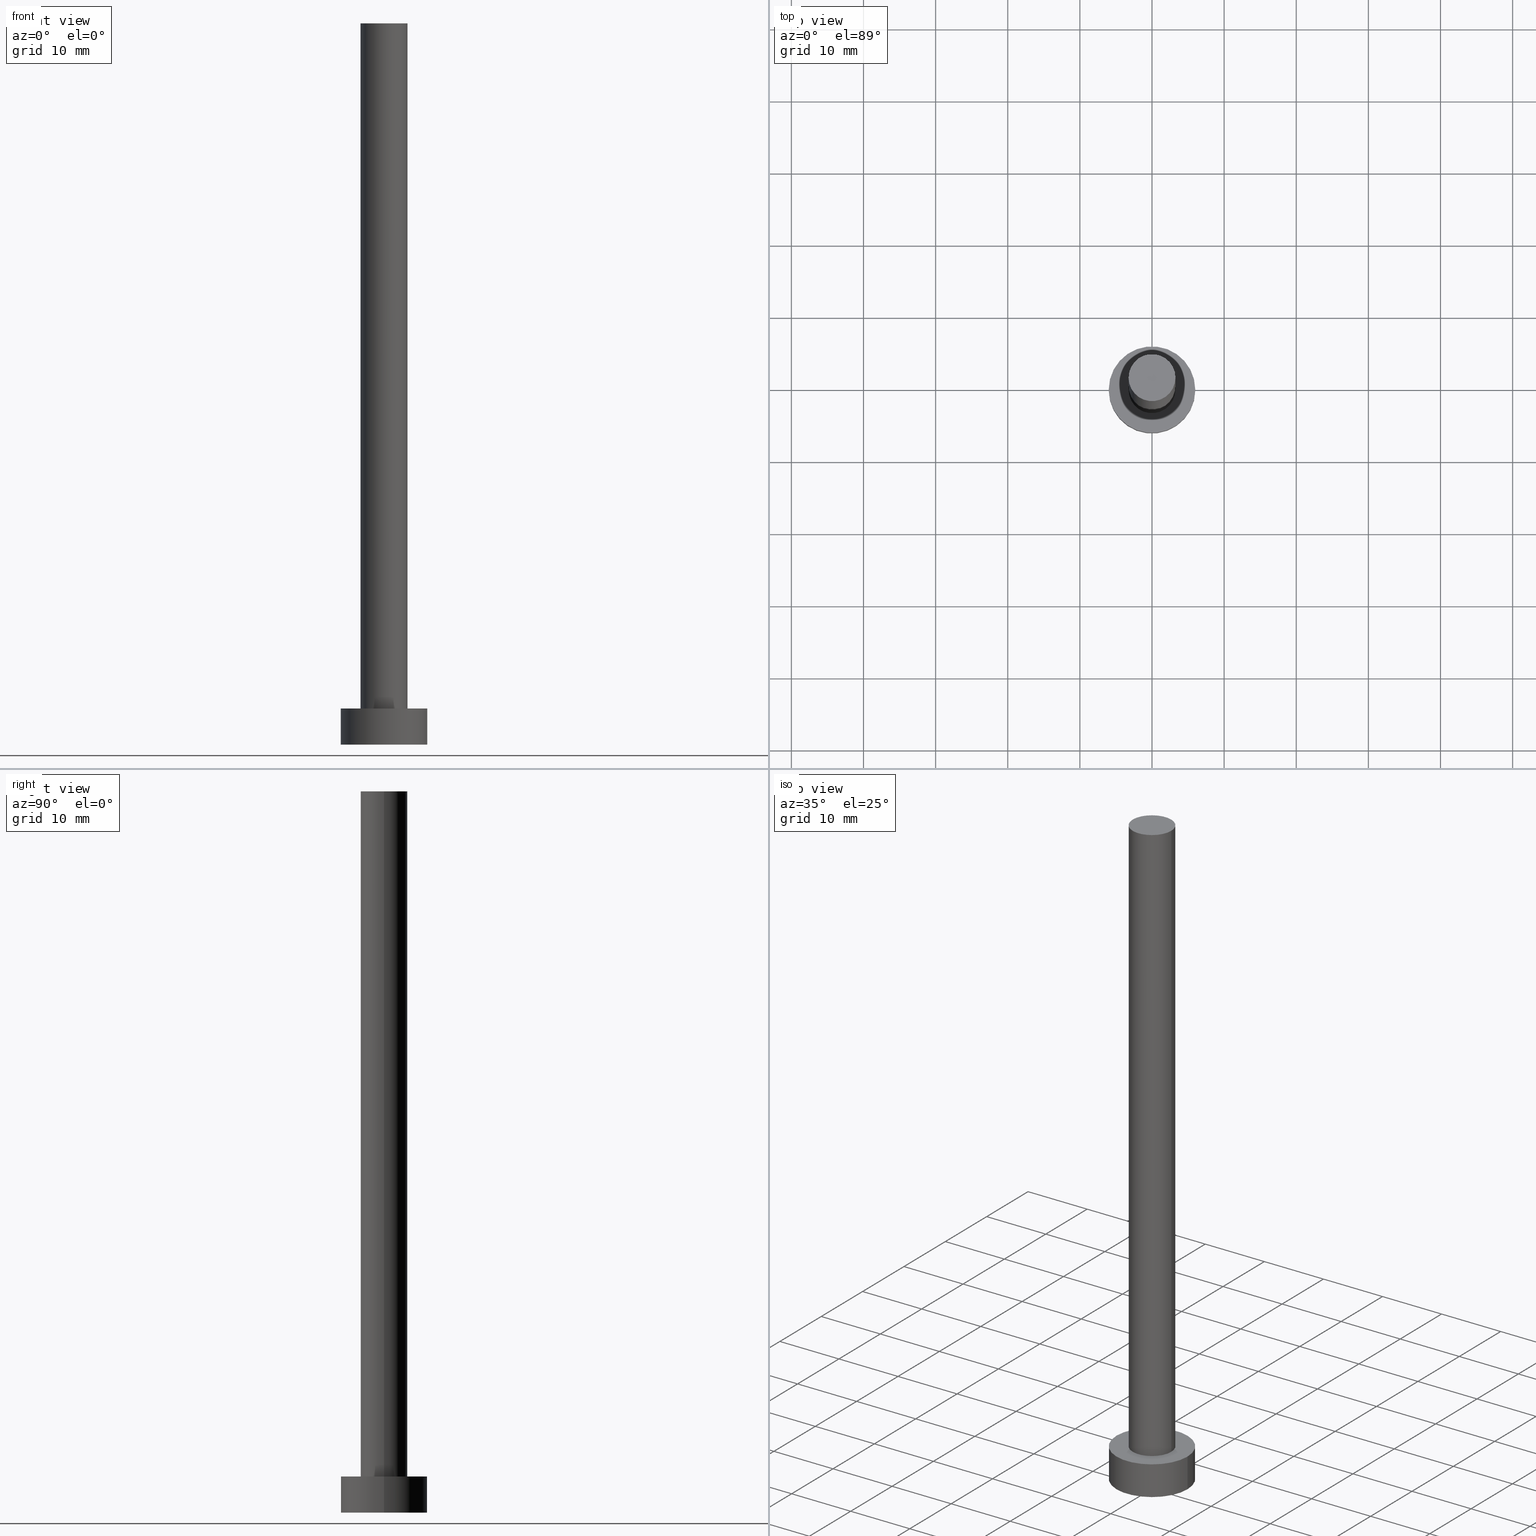
[diagram: canonical four-view strip — front | top / right | iso, engineering-drawing reading convention]
A machine part, canonical four-view strip (front | top / right | iso — engineering-drawing reading convention). The complete STEP part file that produces these views, byte-faithful:
ISO-10303-21;
HEADER;
FILE_DESCRIPTION (( 'STEP AP203' ),
    '1' );
FILE_NAME ('1d6a.STEP',
    '2023-02-13T15:17:59',
    ( '' ),
    ( '' ),
    'SwSTEP 2.0',
    'SolidWorks 2019',
    '' );
FILE_SCHEMA (( 'CONFIG_CONTROL_DESIGN' ));
ENDSEC;

DATA;
#1 = DIRECTION ( 'NONE',  ( -1.000000000000000000, 0.000000000000000000, 0.000000000000000000 ) ) ;
#2 = CC_DESIGN_DATE_AND_TIME_ASSIGNMENT ( #111, #13, ( #134 ) ) ;
#3 = PERSON_AND_ORGANIZATION_ROLE ( 'creator' ) ;
#4 = LINE ( 'NONE', #217, #91 ) ;
#5 = PERSON_AND_ORGANIZATION_ROLE ( 'classification_officer' ) ;
#6 = DIRECTION ( 'NONE',  ( 1.000000000000000000, 0.000000000000000000, 0.000000000000000000 ) ) ;
#7 = DIRECTION ( 'NONE',  ( 0.000000000000000000, 0.000000000000000000, 1.000000000000000000 ) ) ;
#8 = AXIS2_PLACEMENT_3D ( 'NONE', #193, #215, #239 ) ;
#9 = CC_DESIGN_SECURITY_CLASSIFICATION ( #134, ( #128 ) ) ;
#10 = APPROVAL_STATUS ( 'not_yet_approved' ) ;
#11 = CC_DESIGN_PERSON_AND_ORGANIZATION_ASSIGNMENT ( #139, #5, ( #134 ) ) ;
#12 = CARTESIAN_POINT ( 'NONE',  ( 0.000000000000000000, 0.000000000000000000, 5.000000000000000000 ) ) ;
#13 = DATE_TIME_ROLE ( 'classification_date' ) ;
#14 = DATE_AND_TIME ( #243, #93 ) ;
#15 = LOCAL_TIME ( 16, 17, 59.00000000000000000, #172 ) ;
#16 = ORIENTED_EDGE ( 'NONE', *, *, #199, .T. ) ;
#17 = CARTESIAN_POINT ( 'NONE',  ( -6.000000000000000888, 0.000000000000000000, 5.000000000000000000 ) ) ;
#18 = FACE_OUTER_BOUND ( 'NONE', #209, .T. ) ;
#19 = APPROVAL_PERSON_ORGANIZATION ( #216, #110, #123 ) ;
#20 = CARTESIAN_POINT ( 'NONE',  ( 0.000000000000000000, 0.000000000000000000, 0.000000000000000000 ) ) ;
#21 = ORIENTED_EDGE ( 'NONE', *, *, #33, .T. ) ;
#22 = DIRECTION ( 'NONE',  ( -0.000000000000000000, -0.000000000000000000, -1.000000000000000000 ) ) ;
#23 = DIRECTION ( 'NONE',  ( 0.000000000000000000, 0.000000000000000000, 1.000000000000000000 ) ) ;
#24 = LOCAL_TIME ( 16, 17, 59.00000000000000000, #83 ) ;
#25 = DIRECTION ( 'NONE',  ( -0.000000000000000000, -0.000000000000000000, -1.000000000000000000 ) ) ;
#26 = APPLICATION_CONTEXT ( 'configuration controlled 3d designs of mechanical parts and assemblies' ) ;
#27 = APPROVAL_STATUS ( 'not_yet_approved' ) ;
#28 = AXIS2_PLACEMENT_3D ( 'NONE', #116, #162, #226 ) ;
#29 = ADVANCED_FACE ( 'NONE', ( #250 ), #224, .T. ) ;
#30 = CIRCLE ( 'NONE', #196, 6.000000000000000888 ) ;
#31 = VERTEX_POINT ( 'NONE', #118 ) ;
#32 = CARTESIAN_POINT ( 'NONE',  ( 0.000000000000000000, 0.000000000000000000, 0.000000000000000000 ) ) ;
#33 = EDGE_CURVE ( 'NONE', #189, #51, #47, .T. ) ;
#34 = AXIS2_PLACEMENT_3D ( 'NONE', #124, #153, #64 ) ;
#35 = CARTESIAN_POINT ( 'NONE',  ( 0.000000000000000000, 0.000000000000000000, 5.000000000000000000 ) ) ;
#36 = VERTEX_POINT ( 'NONE', #232 ) ;
#37 = CYLINDRICAL_SURFACE ( 'NONE', #214, 6.000000000000000888 ) ;
#38 = MECHANICAL_CONTEXT ( 'NONE', #185, 'mechanical' ) ;
#39 = EDGE_CURVE ( 'NONE', #36, #189, #77, .T. ) ;
#40 = DIRECTION ( 'NONE',  ( -0.000000000000000000, -0.000000000000000000, -1.000000000000000000 ) ) ;
#41 = VECTOR ( 'NONE', #25, 1000.000000000000000 ) ;
#42 = DATE_AND_TIME ( #167, #155 ) ;
#43 = DATE_AND_TIME ( #60, #15 ) ;
#44 = DIRECTION ( 'NONE',  ( 0.000000000000000000, 0.000000000000000000, 1.000000000000000000 ) ) ;
#45 = PERSON_AND_ORGANIZATION ( #225, #140 ) ;
#46 = PRODUCT_DEFINITION_SHAPE ( 'NONE', 'NONE',  #197 ) ;
#47 = CIRCLE ( 'NONE', #188, 6.000000000000000888 ) ;
#48 = CC_DESIGN_PERSON_AND_ORGANIZATION_ASSIGNMENT ( #168, #3, ( #128 ) ) ;
#49 = CIRCLE ( 'NONE', #8, 3.250000000000000444 ) ;
#50 = CC_DESIGN_PERSON_AND_ORGANIZATION_ASSIGNMENT ( #233, #142, ( #197 ) ) ;
#51 = VERTEX_POINT ( 'NONE', #229 ) ;
#52 = AXIS2_PLACEMENT_3D ( 'NONE', #253, #22, #181 ) ;
#53 = ADVANCED_FACE ( 'NONE', ( #54 ), #148, .T. ) ;
#54 = FACE_OUTER_BOUND ( 'NONE', #56, .T. ) ;
#55 = LINE ( 'NONE', #101, #244 ) ;
#56 = EDGE_LOOP ( 'NONE', ( #150, #136, #129, #223 ) ) ;
#57 = CIRCLE ( 'NONE', #231, 3.250000000000000444 ) ;
#58 = EDGE_LOOP ( 'NONE', ( #228, #183 ) ) ;
#59 = FACE_BOUND ( 'NONE', #252, .T. ) ;
#60 = CALENDAR_DATE ( 2023, 13, 2 ) ;
#61 = ADVANCED_FACE ( 'NONE', ( #59, #62 ), #137, .T. ) ;
#62 = FACE_OUTER_BOUND ( 'NONE', #58, .T. ) ;
#63 = DIRECTION ( 'NONE',  ( -0.000000000000000000, -0.000000000000000000, -1.000000000000000000 ) ) ;
#64 = DIRECTION ( 'NONE',  ( -1.000000000000000000, 0.000000000000000000, 0.000000000000000000 ) ) ;
#65 = EDGE_CURVE ( 'NONE', #246, #98, #55, .T. ) ;
#66 = CLOSED_SHELL ( 'NONE', ( #254, #71, #92, #61, #88, #53, #29 ) ) ;
#67 = MANIFOLD_SOLID_BREP ( 'P�idat vysunut�m3', #66 ) ;
#68 =( LENGTH_UNIT ( ) NAMED_UNIT ( * ) SI_UNIT ( .MILLI., .METRE. ) );
#69 = CIRCLE ( 'NONE', #166, 3.250000000000000444 ) ;
#70 = CARTESIAN_POINT ( 'NONE',  ( 0.000000000000000000, 0.000000000000000000, 5.000000000000000000 ) ) ;
#71 = ADVANCED_FACE ( 'NONE', ( #210 ), #94, .T. ) ;
#72 = PERSON_AND_ORGANIZATION ( #225, #140 ) ;
#73 = PRODUCT_RELATED_PRODUCT_CATEGORY ( 'detail', '', ( #173 ) ) ;
#74 = DIRECTION ( 'NONE',  ( 1.000000000000000000, 0.000000000000000000, -0.000000000000000000 ) ) ;
#75 = ORIENTED_EDGE ( 'NONE', *, *, #199, .F. ) ;
#76 = CARTESIAN_POINT ( 'NONE',  ( 0.000000000000000000, 0.000000000000000000, 100.0000000000000000 ) ) ;
#77 = LINE ( 'NONE', #17, #141 ) ;
#78 = ORIENTED_EDGE ( 'NONE', *, *, #152, .F. ) ;
#79 = PLANE ( 'NONE',  #130 ) ;
#80 = ORIENTED_EDGE ( 'NONE', *, *, #152, .T. ) ;
#81 = PERSON_AND_ORGANIZATION ( #225, #140 ) ;
#82 = FACE_OUTER_BOUND ( 'NONE', #180, .T. ) ;
#83 = COORDINATED_UNIVERSAL_TIME_OFFSET ( 1, 0, .AHEAD. ) ;
#84 = APPLICATION_PROTOCOL_DEFINITION ( 'international standard', 'config_control_design', 1994, #185 ) ;
#85 = AXIS2_PLACEMENT_3D ( 'NONE', #171, #159, #103 ) ;
#86 = CALENDAR_DATE ( 2023, 13, 2 ) ;
#87 = DIRECTION ( 'NONE',  ( 0.000000000000000000, 0.000000000000000000, 1.000000000000000000 ) ) ;
#88 = ADVANCED_FACE ( 'NONE', ( #18 ), #79, .F. ) ;
#89 = DIRECTION ( 'NONE',  ( 1.000000000000000000, 0.000000000000000000, -0.000000000000000000 ) ) ;
#90 = CC_DESIGN_PERSON_AND_ORGANIZATION_ASSIGNMENT ( #81, #122, ( #128 ) ) ;
#91 = VECTOR ( 'NONE', #63, 1000.000000000000000 ) ;
#92 = ADVANCED_FACE ( 'NONE', ( #184 ), #37, .T. ) ;
#93 = LOCAL_TIME ( 16, 17, 59.00000000000000000, #112 ) ;
#94 = CYLINDRICAL_SURFACE ( 'NONE', #52, 6.000000000000000888 ) ;
#95 = VERTEX_POINT ( 'NONE', #147 ) ;
#96 = DIRECTION ( 'NONE',  ( 0.000000000000000000, 0.000000000000000000, 1.000000000000000000 ) ) ;
#97 = ADVANCED_BREP_SHAPE_REPRESENTATION ( '1d6a', ( #67, #198 ), #242 ) ;
#98 = VERTEX_POINT ( 'NONE', #146 ) ;
#99 = DIRECTION ( 'NONE',  ( 1.000000000000000000, 0.000000000000000000, -0.000000000000000000 ) ) ;
#100 = ORIENTED_EDGE ( 'NONE', *, *, #160, .F. ) ;
#101 = CARTESIAN_POINT ( 'NONE',  ( 3.250000000000000444, 3.980102097228898231E-16, 100.0000000000000000 ) ) ;
#102 = APPLICATION_PROTOCOL_DEFINITION ( 'international standard', 'config_control_design', 1994, #26 ) ;
#103 = DIRECTION ( 'NONE',  ( 1.000000000000000000, 0.000000000000000000, 0.000000000000000000 ) ) ;
#104 = AXIS2_PLACEMENT_3D ( 'NONE', #35, #207, #99 ) ;
#105 = DATE_TIME_ROLE ( 'creation_date' ) ;
#106 = CARTESIAN_POINT ( 'NONE',  ( -6.000000000000000888, 0.000000000000000000, 0.000000000000000000 ) ) ;
#107 = CC_DESIGN_APPROVAL ( #119, ( #197 ) ) ;
#108 = PERSON_AND_ORGANIZATION_ROLE ( 'design_owner' ) ;
#109 = CIRCLE ( 'NONE', #85, 6.000000000000000888 ) ;
#110 = APPROVAL ( #10, 'NEUR�EN�' ) ;
#111 = DATE_AND_TIME ( #154, #24 ) ;
#112 = COORDINATED_UNIVERSAL_TIME_OFFSET ( 1, 0, .AHEAD. ) ;
#113 = EDGE_LOOP ( 'NONE', ( #132, #16, #202, #186 ) ) ;
#114 = ORIENTED_EDGE ( 'NONE', *, *, #33, .F. ) ;
#115 = ORIENTED_EDGE ( 'NONE', *, *, #235, .F. ) ;
#116 = CARTESIAN_POINT ( 'NONE',  ( 0.000000000000000000, 0.000000000000000000, 5.000000000000000000 ) ) ;
#117 = ORIENTED_EDGE ( 'NONE', *, *, #39, .T. ) ;
#118 = CARTESIAN_POINT ( 'NONE',  ( -3.250000000000000444, 0.000000000000000000, 5.000000000000000000 ) ) ;
#119 = APPROVAL ( #151, 'NEUR�EN�' ) ;
#120 = CARTESIAN_POINT ( 'NONE',  ( 0.000000000000000000, 0.000000000000000000, 0.000000000000000000 ) ) ;
#121 = APPROVAL ( #27, 'NEUR�EN�' ) ;
#122 = PERSON_AND_ORGANIZATION_ROLE ( 'design_supplier' ) ;
#123 = APPROVAL_ROLE ( '' ) ;
#124 = CARTESIAN_POINT ( 'NONE',  ( 0.000000000000000000, 0.000000000000000000, 100.0000000000000000 ) ) ;
#125 = DIRECTION ( 'NONE',  ( 1.000000000000000000, 0.000000000000000000, 0.000000000000000000 ) ) ;
#126 = DIRECTION ( 'NONE',  ( 1.000000000000000000, 0.000000000000000000, 0.000000000000000000 ) ) ;
#127 = DIRECTION ( 'NONE',  ( 1.000000000000000000, 0.000000000000000000, 0.000000000000000000 ) ) ;
#128 = PRODUCT_DEFINITION_FORMATION_WITH_SPECIFIED_SOURCE ( 'LIBOVOLN�', '', #173, .NOT_KNOWN. ) ;
#129 = ORIENTED_EDGE ( 'NONE', *, *, #182, .T. ) ;
#130 = AXIS2_PLACEMENT_3D ( 'NONE', #20, #96, #74 ) ;
#131 = ORIENTED_EDGE ( 'NONE', *, *, #191, .F. ) ;
#132 = ORIENTED_EDGE ( 'NONE', *, *, #133, .F. ) ;
#133 = EDGE_CURVE ( 'NONE', #204, #36, #177, .T. ) ;
#134 = SECURITY_CLASSIFICATION ( '', '', #194 ) ;
#135 = ORIENTED_EDGE ( 'NONE', *, *, #182, .F. ) ;
#136 = ORIENTED_EDGE ( 'NONE', *, *, #222, .F. ) ;
#137 = PLANE ( 'NONE',  #104 ) ;
#138 = COORDINATED_UNIVERSAL_TIME_OFFSET ( 1, 0, .AHEAD. ) ;
#139 = PERSON_AND_ORGANIZATION ( #225, #140 ) ;
#140 = ORGANIZATION ( 'NEUR�EN�', 'NEUR�EN�', '' ) ;
#141 = VECTOR ( 'NONE', #234, 1000.000000000000000 ) ;
#142 = PERSON_AND_ORGANIZATION_ROLE ( 'creator' ) ;
#143 =( NAMED_UNIT ( * ) SI_UNIT ( $, .STERADIAN. ) SOLID_ANGLE_UNIT ( ) );
#144 = CARTESIAN_POINT ( 'NONE',  ( 0.000000000000000000, 0.000000000000000000, 100.0000000000000000 ) ) ;
#145 = APPROVAL_DATE_TIME ( #14, #121 ) ;
#146 = CARTESIAN_POINT ( 'NONE',  ( 3.250000000000000444, 3.980102097228898231E-16, 5.000000000000000000 ) ) ;
#147 = CARTESIAN_POINT ( 'NONE',  ( -3.250000000000000444, 0.000000000000000000, 100.0000000000000000 ) ) ;
#148 = CYLINDRICAL_SURFACE ( 'NONE', #203, 3.250000000000000444 ) ;
#149 = APPROVAL_PERSON_ORGANIZATION ( #72, #121, #161 ) ;
#150 = ORIENTED_EDGE ( 'NONE', *, *, #65, .F. ) ;
#151 = APPROVAL_STATUS ( 'not_yet_approved' ) ;
#152 = EDGE_CURVE ( 'NONE', #246, #95, #208, .T. ) ;
#153 = DIRECTION ( 'NONE',  ( -0.000000000000000000, -0.000000000000000000, -1.000000000000000000 ) ) ;
#154 = CALENDAR_DATE ( 2023, 13, 2 ) ;
#155 = LOCAL_TIME ( 16, 17, 59.00000000000000000, #138 ) ;
#156 = DATE_AND_TIME ( #86, #236 ) ;
#157 = CARTESIAN_POINT ( 'NONE',  ( 6.000000000000000888, 7.347880794884120722E-16, 5.000000000000000000 ) ) ;
#158 = APPROVAL_ROLE ( '' ) ;
#159 = DIRECTION ( 'NONE',  ( 0.000000000000000000, 0.000000000000000000, 1.000000000000000000 ) ) ;
#160 = EDGE_CURVE ( 'NONE', #36, #204, #109, .T. ) ;
#161 = APPROVAL_ROLE ( '' ) ;
#162 = DIRECTION ( 'NONE',  ( 0.000000000000000000, 0.000000000000000000, 1.000000000000000000 ) ) ;
#163 = ORIENTED_EDGE ( 'NONE', *, *, #65, .T. ) ;
#164 = DIRECTION ( 'NONE',  ( -0.000000000000000000, -0.000000000000000000, -1.000000000000000000 ) ) ;
#165 = DIRECTION ( 'NONE',  ( -0.000000000000000000, -0.000000000000000000, -1.000000000000000000 ) ) ;
#166 = AXIS2_PLACEMENT_3D ( 'NONE', #12, #87, #126 ) ;
#167 = CALENDAR_DATE ( 2023, 13, 2 ) ;
#168 = PERSON_AND_ORGANIZATION ( #225, #140 ) ;
#169 =( NAMED_UNIT ( * ) PLANE_ANGLE_UNIT ( ) SI_UNIT ( $, .RADIAN. ) );
#170 = CARTESIAN_POINT ( 'NONE',  ( 0.000000000000000000, 0.000000000000000000, 0.000000000000000000 ) ) ;
#171 = CARTESIAN_POINT ( 'NONE',  ( 0.000000000000000000, 0.000000000000000000, 5.000000000000000000 ) ) ;
#172 = COORDINATED_UNIVERSAL_TIME_OFFSET ( 1, 0, .AHEAD. ) ;
#173 = PRODUCT ( '1d6a', '1d6a', '', ( #38 ) ) ;
#174 = LINE ( 'NONE', #157, #41 ) ;
#175 = DIRECTION ( 'NONE',  ( 0.000000000000000000, 0.000000000000000000, 1.000000000000000000 ) ) ;
#176 = DIRECTION ( 'NONE',  ( 0.000000000000000000, 0.000000000000000000, 1.000000000000000000 ) ) ;
#177 = CIRCLE ( 'NONE', #28, 6.000000000000000888 ) ;
#178 = ORIENTED_EDGE ( 'NONE', *, *, #222, .T. ) ;
#179 = CC_DESIGN_APPROVAL ( #121, ( #134 ) ) ;
#180 = EDGE_LOOP ( 'NONE', ( #78, #163, #205, #135 ) ) ;
#181 = DIRECTION ( 'NONE',  ( -1.000000000000000000, 0.000000000000000000, 0.000000000000000000 ) ) ;
#182 = EDGE_CURVE ( 'NONE', #95, #31, #4, .T. ) ;
#183 = ORIENTED_EDGE ( 'NONE', *, *, #133, .T. ) ;
#184 = FACE_OUTER_BOUND ( 'NONE', #190, .T. ) ;
#185 = APPLICATION_CONTEXT ( 'configuration controlled 3d designs of mechanical parts and assemblies' ) ;
#186 = ORIENTED_EDGE ( 'NONE', *, *, #39, .F. ) ;
#187 = DIRECTION ( 'NONE',  ( 1.000000000000000000, 0.000000000000000000, 0.000000000000000000 ) ) ;
#188 = AXIS2_PLACEMENT_3D ( 'NONE', #32, #255, #187 ) ;
#189 = VERTEX_POINT ( 'NONE', #106 ) ;
#190 = EDGE_LOOP ( 'NONE', ( #75, #100, #117, #21 ) ) ;
#191 = EDGE_CURVE ( 'NONE', #31, #98, #57, .T. ) ;
#192 = CARTESIAN_POINT ( 'NONE',  ( 0.000000000000000000, 0.000000000000000000, 5.000000000000000000 ) ) ;
#193 = CARTESIAN_POINT ( 'NONE',  ( 0.000000000000000000, 0.000000000000000000, 100.0000000000000000 ) ) ;
#194 = SECURITY_CLASSIFICATION_LEVEL ( 'unclassified' ) ;
#195 = DIRECTION ( 'NONE',  ( 1.000000000000000000, 0.000000000000000000, 0.000000000000000000 ) ) ;
#196 = AXIS2_PLACEMENT_3D ( 'NONE', #120, #23, #127 ) ;
#197 = PRODUCT_DEFINITION ( 'NEZN�M�', '', #128, #221 ) ;
#198 = AXIS2_PLACEMENT_3D ( 'NONE', #170, #7, #125 ) ;
#199 = EDGE_CURVE ( 'NONE', #204, #51, #174, .T. ) ;
#200 = SHAPE_DEFINITION_REPRESENTATION ( #46, #97 ) ;
#201 = EDGE_LOOP ( 'NONE', ( #178, #80 ) ) ;
#202 = ORIENTED_EDGE ( 'NONE', *, *, #235, .T. ) ;
#203 = AXIS2_PLACEMENT_3D ( 'NONE', #227, #165, #1 ) ;
#204 = VERTEX_POINT ( 'NONE', #219 ) ;
#205 = ORIENTED_EDGE ( 'NONE', *, *, #251, .T. ) ;
#206 = APPROVAL_PERSON_ORGANIZATION ( #213, #119, #158 ) ;
#207 = DIRECTION ( 'NONE',  ( 0.000000000000000000, 0.000000000000000000, 1.000000000000000000 ) ) ;
#208 = CIRCLE ( 'NONE', #238, 3.250000000000000444 ) ;
#209 = EDGE_LOOP ( 'NONE', ( #114, #115 ) ) ;
#210 = FACE_OUTER_BOUND ( 'NONE', #113, .T. ) ;
#211 = DIRECTION ( 'NONE',  ( -1.000000000000000000, 0.000000000000000000, 0.000000000000000000 ) ) ;
#212 = APPROVAL_DATE_TIME ( #42, #110 ) ;
#213 = PERSON_AND_ORGANIZATION ( #225, #140 ) ;
#214 = AXIS2_PLACEMENT_3D ( 'NONE', #192, #164, #211 ) ;
#215 = DIRECTION ( 'NONE',  ( 0.000000000000000000, 0.000000000000000000, 1.000000000000000000 ) ) ;
#216 = PERSON_AND_ORGANIZATION ( #225, #140 ) ;
#217 = CARTESIAN_POINT ( 'NONE',  ( -3.250000000000000444, 0.000000000000000000, 100.0000000000000000 ) ) ;
#218 = CARTESIAN_POINT ( 'NONE',  ( 3.250000000000000444, 3.980102097228898231E-16, 100.0000000000000000 ) ) ;
#219 = CARTESIAN_POINT ( 'NONE',  ( 6.000000000000000888, 7.347880794884120722E-16, 5.000000000000000000 ) ) ;
#220 = CC_DESIGN_DATE_AND_TIME_ASSIGNMENT ( #43, #105, ( #197 ) ) ;
#221 = DESIGN_CONTEXT ( 'detailed design', #26, 'design' ) ;
#222 = EDGE_CURVE ( 'NONE', #95, #246, #49, .T. ) ;
#223 = ORIENTED_EDGE ( 'NONE', *, *, #191, .T. ) ;
#224 = PLANE ( 'NONE',  #248 ) ;
#225 = PERSON ( 'NEUR�EN�', 'NEUR�EN�', 'NEUR�EN�', ('NEUR�EN�'), ('NEUR�EN�'), ('NEUR�EN�') ) ;
#226 = DIRECTION ( 'NONE',  ( 1.000000000000000000, 0.000000000000000000, 0.000000000000000000 ) ) ;
#227 = CARTESIAN_POINT ( 'NONE',  ( 0.000000000000000000, 0.000000000000000000, 100.0000000000000000 ) ) ;
#228 = ORIENTED_EDGE ( 'NONE', *, *, #160, .T. ) ;
#229 = CARTESIAN_POINT ( 'NONE',  ( 6.000000000000000888, 7.347880794884120722E-16, 0.000000000000000000 ) ) ;
#230 = CC_DESIGN_PERSON_AND_ORGANIZATION_ASSIGNMENT ( #45, #108, ( #173 ) ) ;
#231 = AXIS2_PLACEMENT_3D ( 'NONE', #70, #44, #6 ) ;
#232 = CARTESIAN_POINT ( 'NONE',  ( -6.000000000000000888, 0.000000000000000000, 5.000000000000000000 ) ) ;
#233 = PERSON_AND_ORGANIZATION ( #225, #140 ) ;
#234 = DIRECTION ( 'NONE',  ( -0.000000000000000000, -0.000000000000000000, -1.000000000000000000 ) ) ;
#235 = EDGE_CURVE ( 'NONE', #51, #189, #30, .T. ) ;
#236 = LOCAL_TIME ( 16, 17, 59.00000000000000000, #237 ) ;
#237 = COORDINATED_UNIVERSAL_TIME_OFFSET ( 1, 0, .AHEAD. ) ;
#238 = AXIS2_PLACEMENT_3D ( 'NONE', #76, #175, #195 ) ;
#239 = DIRECTION ( 'NONE',  ( 1.000000000000000000, 0.000000000000000000, 0.000000000000000000 ) ) ;
#240 = APPROVAL_DATE_TIME ( #156, #119 ) ;
#241 = CYLINDRICAL_SURFACE ( 'NONE', #34, 3.250000000000000444 ) ;
#242 =( GEOMETRIC_REPRESENTATION_CONTEXT ( 3 ) GLOBAL_UNCERTAINTY_ASSIGNED_CONTEXT ( ( #249 ) ) GLOBAL_UNIT_ASSIGNED_CONTEXT ( ( #68, #169, #143 ) ) REPRESENTATION_CONTEXT ( 'NONE', 'WORKASPACE' ) );
#243 = CALENDAR_DATE ( 2023, 13, 2 ) ;
#244 = VECTOR ( 'NONE', #40, 1000.000000000000000 ) ;
#245 = ORIENTED_EDGE ( 'NONE', *, *, #251, .F. ) ;
#246 = VERTEX_POINT ( 'NONE', #218 ) ;
#247 = CC_DESIGN_APPROVAL ( #110, ( #128 ) ) ;
#248 = AXIS2_PLACEMENT_3D ( 'NONE', #144, #176, #89 ) ;
#249 = UNCERTAINTY_MEASURE_WITH_UNIT (LENGTH_MEASURE( 1.000000000000000082E-05 ), #68, 'distance_accuracy_value', 'NONE');
#250 = FACE_OUTER_BOUND ( 'NONE', #201, .T. ) ;
#251 = EDGE_CURVE ( 'NONE', #98, #31, #69, .T. ) ;
#252 = EDGE_LOOP ( 'NONE', ( #131, #245 ) ) ;
#253 = CARTESIAN_POINT ( 'NONE',  ( 0.000000000000000000, 0.000000000000000000, 5.000000000000000000 ) ) ;
#254 = ADVANCED_FACE ( 'NONE', ( #82 ), #241, .T. ) ;
#255 = DIRECTION ( 'NONE',  ( 0.000000000000000000, 0.000000000000000000, 1.000000000000000000 ) ) ;
ENDSEC;
END-ISO-10303-21;
